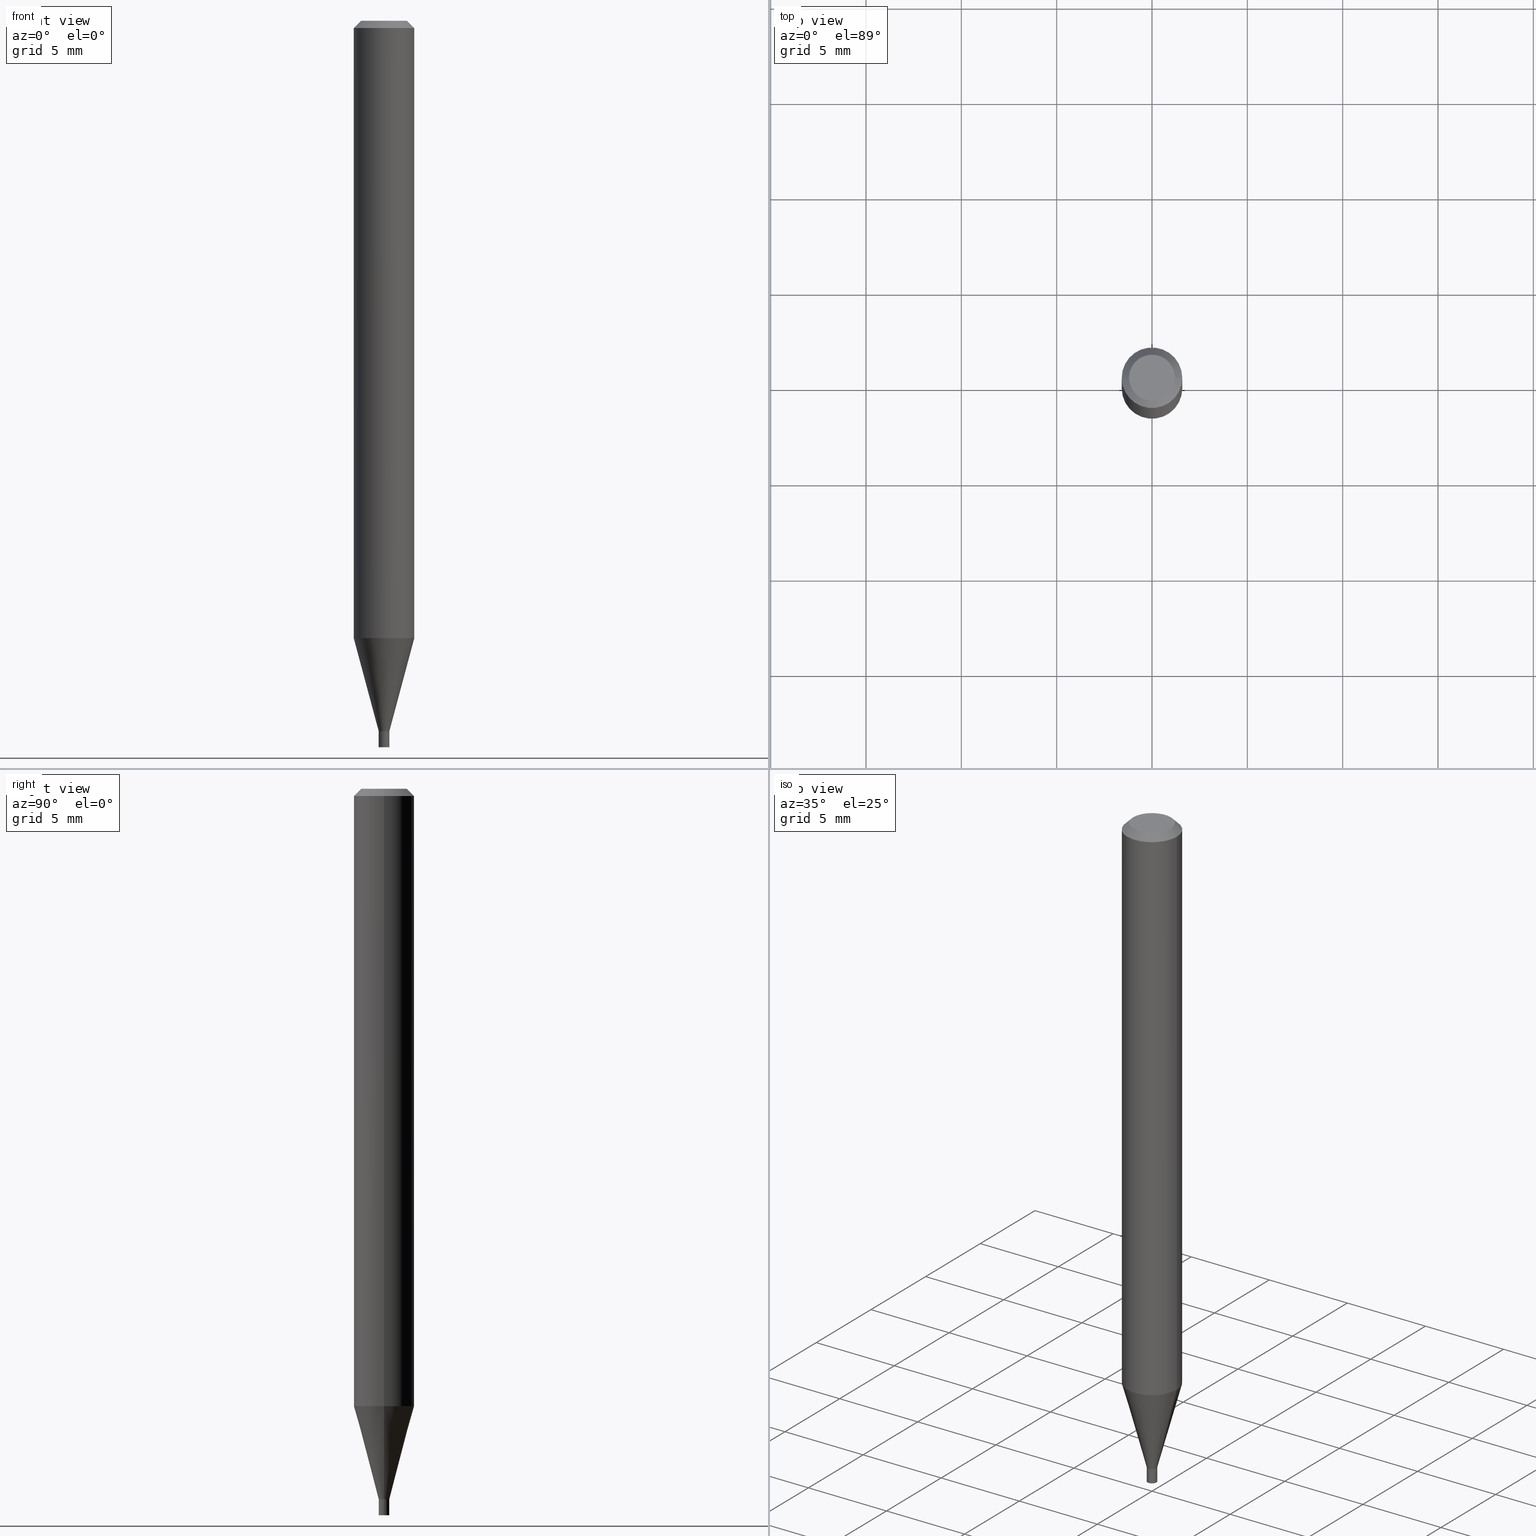
[diagram: canonical four-view strip — front | top / right | iso, engineering-drawing reading convention]
A machine part, canonical four-view strip (front | top / right | iso — engineering-drawing reading convention). The complete STEP part file that produces these views, byte-faithful:
ISO-10303-21;
HEADER;
FILE_DESCRIPTION (( 'STEP AP203' ),
    '1' );
FILE_NAME ('04057.STEP',
    '2024-03-14T16:55:55',
    ( '' ),
    ( '' ),
    'SwSTEP 2.0',
    'SolidWorks 2023',
    '' );
FILE_SCHEMA (( 'CONFIG_CONTROL_DESIGN' ));
ENDSEC;

DATA;
#1 = CC_DESIGN_PERSON_AND_ORGANIZATION_ASSIGNMENT ( #65, #47, ( #183 ) ) ;
#2 = VERTEX_POINT ( 'NONE', #393 ) ;
#3 = ORIENTED_EDGE ( 'NONE', *, *, #371, .T. ) ;
#4 = CIRCLE ( 'NONE', #318, 0.06250000000000000000 ) ;
#5 = CALENDAR_DATE ( 2024, 14, 3 ) ;
#6 = EDGE_CURVE ( 'NONE', #356, #174, #235, .T. ) ;
#7 = DIRECTION ( 'NONE',  ( 1.000000000000000000, -6.982962677686245411E-15, 0.000000000000000000 ) ) ;
#8 = DIRECTION ( 'NONE',  ( -2.445468806185136597E-29, 3.491481338843145583E-15, 1.000000000000000000 ) ) ;
#9 = FACE_OUTER_BOUND ( 'NONE', #215, .T. ) ;
#10 = CALENDAR_DATE ( 2024, 14, 3 ) ;
#11 = CARTESIAN_POINT ( 'NONE',  ( 3.668203209277705088E-31, -5.237222008264718399E-17, -0.01499999999999999944 ) ) ;
#12 = PERSON_AND_ORGANIZATION ( #396, #122 ) ;
#13 = VECTOR ( 'NONE', #162, 39.37007874015748143 ) ;
#14 =( GEOMETRIC_REPRESENTATION_CONTEXT ( 3 ) GLOBAL_UNCERTAINTY_ASSIGNED_CONTEXT ( ( #459 ) ) GLOBAL_UNIT_ASSIGNED_CONTEXT ( ( #389, #39, #179 ) ) REPRESENTATION_CONTEXT ( 'NONE', 'WORKASPACE' ) );
#15 = DIRECTION ( 'NONE',  ( 2.438088387897960049E-29, -3.491481338843145188E-15, -1.000000000000000000 ) ) ;
#16 = CC_DESIGN_DATE_AND_TIME_ASSIGNMENT ( #368, #153, ( #183 ) ) ;
#17 = CARTESIAN_POINT ( 'NONE',  ( 3.668203209277705088E-31, -5.237222008264718399E-17, -0.01499999999999999944 ) ) ;
#18 = CYLINDRICAL_SURFACE ( 'NONE', #86, 0.01099999999999999936 ) ;
#19 = VERTEX_POINT ( 'NONE', #72 ) ;
#20 = AXIS2_PLACEMENT_3D ( 'NONE', #30, #315, #424 ) ;
#21 = CARTESIAN_POINT ( 'NONE',  ( 0.04749999999999999362, -4.035134999187566790E-16, 6.443424916547846258E-16 ) ) ;
#22 = EDGE_CURVE ( 'NONE', #427, #430, #35, .T. ) ;
#23 = ORIENTED_EDGE ( 'NONE', *, *, #301, .T. ) ;
#24 = FACE_OUTER_BOUND ( 'NONE', #275, .T. ) ;
#25 = DIRECTION ( 'NONE',  ( 1.000000000000000000, -6.982962677686265922E-15, 4.876176775795936353E-29 ) ) ;
#26 = DIRECTION ( 'NONE',  ( 1.000000000000000000, -6.982962677686296687E-15, 0.000000000000000000 ) ) ;
#27 = CIRCLE ( 'NONE', #283, 0.01049999999999999892 ) ;
#28 = ADVANCED_FACE ( 'NONE', ( #142 ), #282, .T. ) ;
#29 = CYLINDRICAL_SURFACE ( 'NONE', #213, 0.01100000000000019539 ) ;
#30 = CARTESIAN_POINT ( 'NONE',  ( 3.668203209277704895E-29, -5.237222008264718177E-15, -1.500000000000000222 ) ) ;
#31 = CARTESIAN_POINT ( 'NONE',  ( 3.587502738673596813E-29, -5.122003124082896575E-15, -1.467000000000000526 ) ) ;
#32 = VERTEX_POINT ( 'NONE', #69 ) ;
#33 = DIRECTION ( 'NONE',  ( -2.445468806185136597E-29, 3.491481338843145583E-15, 1.000000000000000000 ) ) ;
#34 = EDGE_CURVE ( 'NONE', #174, #356, #416, .T. ) ;
#35 = CIRCLE ( 'NONE', #425, 0.01049999999999999892 ) ;
#36 = CIRCLE ( 'NONE', #387, 0.01099999999999999936 ) ;
#37 = CARTESIAN_POINT ( 'NONE',  ( 3.587502738673596813E-29, -5.122003124082896575E-15, -1.467000000000000526 ) ) ;
#38 = ORIENTED_EDGE ( 'NONE', *, *, #199, .F. ) ;
#39 =( NAMED_UNIT ( * ) PLANE_ANGLE_UNIT ( ) SI_UNIT ( $, .RADIAN. ) );
#40 = EDGE_CURVE ( 'NONE', #19, #466, #104, .T. ) ;
#41 = DIRECTION ( 'NONE',  ( 0.7071067811865642261, -2.468850131082431399E-15, 0.7071067811865309194 ) ) ;
#42 = CIRCLE ( 'NONE', #394, 0.06250000000000000000 ) ;
#43 = DIRECTION ( 'NONE',  ( 1.000000000000000000, -6.982962677686287221E-15, 0.000000000000000000 ) ) ;
#44 = LOCAL_TIME ( 12, 55, 55.00000000000000000, #438 ) ;
#45 = DIRECTION ( 'NONE',  ( 2.445468806185136597E-29, -3.491481338843145583E-15, -1.000000000000000000 ) ) ;
#46 = DIRECTION ( 'NONE',  ( 1.000000000000000000, -6.982962677686245411E-15, 0.000000000000000000 ) ) ;
#47 = PERSON_AND_ORGANIZATION_ROLE ( 'creator' ) ;
#48 = CARTESIAN_POINT ( 'NONE',  ( 3.587502738673595692E-29, -5.122003124082895786E-15, -1.467000000000000304 ) ) ;
#49 = EDGE_CURVE ( 'NONE', #73, #232, #236, .T. ) ;
#50 = APPROVAL_STATUS ( 'not_yet_approved' ) ;
#51 = VECTOR ( 'NONE', #450, 39.37007874015748143 ) ;
#52 = DIRECTION ( 'NONE',  ( -2.445468806185136597E-29, 3.491481338843145583E-15, 1.000000000000000000 ) ) ;
#53 = DIRECTION ( 'NONE',  ( -2.445468806185136597E-29, 3.491481338843145583E-15, 1.000000000000000000 ) ) ;
#54 = ORIENTED_EDGE ( 'NONE', *, *, #56, .T. ) ;
#55 = APPROVAL_ROLE ( '' ) ;
#56 = EDGE_CURVE ( 'NONE', #61, #386, #161, .T. ) ;
#57 = CYLINDRICAL_SURFACE ( 'NONE', #188, 0.06250000000000000000 ) ;
#58 = EDGE_LOOP ( 'NONE', ( #106, #212, #164, #323 ) ) ;
#59 = FACE_OUTER_BOUND ( 'NONE', #395, .T. ) ;
#60 = CARTESIAN_POINT ( 'NONE',  ( -0.01099999999999999936, -5.101452865240196680E-15, -1.500000000000000222 ) ) ;
#61 = VERTEX_POINT ( 'NONE', #437 ) ;
#62 = DIRECTION ( 'NONE',  ( -2.445468806185136877E-29, 3.491481338843145188E-15, 1.000000000000000000 ) ) ;
#63 = ORIENTED_EDGE ( 'NONE', *, *, #165, .T. ) ;
#64 = EDGE_CURVE ( 'NONE', #32, #141, #335, .T. ) ;
#65 = PERSON_AND_ORGANIZATION ( #396, #122 ) ;
#66 = AXIS2_PLACEMENT_3D ( 'NONE', #291, #398, #330 ) ;
#67 = ORIENTED_EDGE ( 'NONE', *, *, #129, .F. ) ;
#68 = DIRECTION ( 'NONE',  ( 1.000000000000000000, -6.982962677686262766E-15, 0.000000000000000000 ) ) ;
#69 = CARTESIAN_POINT ( 'NONE',  ( -0.01100000000000019539, -4.525346235622348096E-15, -1.467000000000000304 ) ) ;
#70 = ADVANCED_FACE ( 'NONE', ( #397 ), #326, .T. ) ;
#71 = CARTESIAN_POINT ( 'NONE',  ( 3.668203209277704895E-29, -5.237222008264718177E-15, -1.500000000000000222 ) ) ;
#72 = CARTESIAN_POINT ( 'NONE',  ( 0.01100000000000019539, -5.198815713537445887E-15, -1.467000000000000304 ) ) ;
#73 = VERTEX_POINT ( 'NONE', #76 ) ;
#74 = APPROVAL_STATUS ( 'not_yet_approved' ) ;
#75 = PLANE ( 'NONE',  #227 ) ;
#76 = CARTESIAN_POINT ( 'NONE',  ( -0.04749999999999999362, 3.578768372314221846E-16, 6.443424916547796954E-16 ) ) ;
#77 = AXIS2_PLACEMENT_3D ( 'NONE', #11, #434, #402 ) ;
#78 = FACE_OUTER_BOUND ( 'NONE', #449, .T. ) ;
#79 = LOCAL_TIME ( 12, 55, 55.00000000000000000, #220 ) ;
#80 = DIRECTION ( 'NONE',  ( -2.445468806185136877E-29, 3.491481338843145188E-15, 1.000000000000000000 ) ) ;
#81 = APPROVAL_DATE_TIME ( #376, #352 ) ;
#82 = EDGE_CURVE ( 'NONE', #430, #141, #404, .T. ) ;
#83 = CARTESIAN_POINT ( 'NONE',  ( -0.01049999999999999892, -5.047396136828085594E-15, -1.467000000000000526 ) ) ;
#84 = PERSON_AND_ORGANIZATION_ROLE ( 'design_supplier' ) ;
#85 = CARTESIAN_POINT ( 'NONE',  ( 0.06250000000000000000, -4.364351673553916694E-16, 3.047610484872459871E-30 ) ) ;
#86 = AXIS2_PLACEMENT_3D ( 'NONE', #271, #198, #408 ) ;
#87 = PRODUCT_DEFINITION_FORMATION_WITH_SPECIFIED_SOURCE ( 'ANY', '', #339, .NOT_KNOWN. ) ;
#88 = DIRECTION ( 'NONE',  ( -2.445468806185136597E-29, 3.491481338843145583E-15, 1.000000000000000000 ) ) ;
#89 = EDGE_CURVE ( 'NONE', #19, #32, #103, .T. ) ;
#90 = APPLICATION_CONTEXT ( 'configuration controlled 3d designs of mechanical parts and assemblies' ) ;
#91 = CARTESIAN_POINT ( 'NONE',  ( -0.06250000000000000000, -4.006849048095413862E-15, -1.274799383410204268 ) ) ;
#92 = CARTESIAN_POINT ( 'NONE',  ( 0.01100000000000019539, -5.197069972868025172E-15, -1.466500000000000359 ) ) ;
#93 = AXIS2_PLACEMENT_3D ( 'NONE', #363, #45, #184 ) ;
#94 = DIRECTION ( 'NONE',  ( -2.445468806185136877E-29, 3.491481338843145188E-15, 1.000000000000000000 ) ) ;
#95 = AXIS2_PLACEMENT_3D ( 'NONE', #133, #8, #68 ) ;
#96 = EDGE_LOOP ( 'NONE', ( #382, #384 ) ) ;
#97 = LINE ( 'NONE', #383, #206 ) ;
#98 = CC_DESIGN_PERSON_AND_ORGANIZATION_ASSIGNMENT ( #436, #461, ( #339 ) ) ;
#99 = ORIENTED_EDGE ( 'NONE', *, *, #34, .F. ) ;
#100 = DATE_AND_TIME ( #5, #79 ) ;
#101 = ORIENTED_EDGE ( 'NONE', *, *, #336, .F. ) ;
#102 = DIRECTION ( 'NONE',  ( -2.445468806185136597E-29, 3.491481338843145583E-15, 1.000000000000000000 ) ) ;
#103 = CIRCLE ( 'NONE', #465, 0.01100000000000019539 ) ;
#104 = LINE ( 'NONE', #209, #303 ) ;
#105 = ORIENTED_EDGE ( 'NONE', *, *, #150, .T. ) ;
#106 = ORIENTED_EDGE ( 'NONE', *, *, #89, .T. ) ;
#107 = ORIENTED_EDGE ( 'NONE', *, *, #301, .F. ) ;
#108 = AXIS2_PLACEMENT_3D ( 'NONE', #151, #52, #222 ) ;
#109 = DIRECTION ( 'NONE',  ( 1.000000000000000000, -6.982962677686245411E-15, 0.000000000000000000 ) ) ;
#110 = EDGE_CURVE ( 'NONE', #2, #128, #270, .T. ) ;
#111 = FACE_OUTER_BOUND ( 'NONE', #284, .T. ) ;
#112 = DIRECTION ( 'NONE',  ( -2.445468806185136877E-29, 3.491481338843145188E-15, 1.000000000000000000 ) ) ;
#113 = DIRECTION ( 'NONE',  ( 1.000000000000000000, 0.000000000000000000, 0.000000000000000000 ) ) ;
#114 = DIRECTION ( 'NONE',  ( 2.438088387897960049E-29, -3.491481338843145188E-15, -1.000000000000000000 ) ) ;
#115 = VECTOR ( 'NONE', #268, 39.37007874015748143 ) ;
#116 = SHAPE_DEFINITION_REPRESENTATION ( #229, #420 ) ;
#117 = ADVANCED_FACE ( 'NONE', ( #367 ), #75, .F. ) ;
#118 = DIRECTION ( 'NONE',  ( -2.438088387897960049E-29, 3.491481338843145188E-15, 1.000000000000000000 ) ) ;
#119 = COORDINATED_UNIVERSAL_TIME_OFFSET ( 5, 0, .BEHIND. ) ;
#120 = DIRECTION ( 'NONE',  ( 1.000000000000000000, -6.982962677686296687E-15, 0.000000000000000000 ) ) ;
#121 = DIRECTION ( 'NONE',  ( -2.445468806185136597E-29, 3.491481338843145583E-15, 1.000000000000000000 ) ) ;
#122 = ORGANIZATION ( 'UNSPECIFIED', 'UNSPECIFIED', '' ) ;
#123 = LINE ( 'NONE', #340, #13 ) ;
#124 = ORIENTED_EDGE ( 'NONE', *, *, #22, .T. ) ;
#125 = DIRECTION ( 'NONE',  ( 1.000000000000000000, -6.982962677686296687E-15, 0.000000000000000000 ) ) ;
#126 = ORIENTED_EDGE ( 'NONE', *, *, #82, .T. ) ;
#127 = CARTESIAN_POINT ( 'NONE',  ( 3.587502738673595692E-29, -5.122003124082895786E-15, -1.467000000000000304 ) ) ;
#128 = VERTEX_POINT ( 'NONE', #180 ) ;
#129 = EDGE_CURVE ( 'NONE', #386, #61, #36, .T. ) ;
#130 = VECTOR ( 'NONE', #80, 39.37007874015748143 ) ;
#131 = LINE ( 'NONE', #380, #226 ) ;
#132 = CARTESIAN_POINT ( 'NONE',  ( 0.000000000000000000, 0.000000000000000000, 0.000000000000000000 ) ) ;
#133 = CARTESIAN_POINT ( 'NONE',  ( 3.117482126273700423E-29, -4.450938257945477267E-15, -1.274799383410204268 ) ) ;
#134 = CARTESIAN_POINT ( 'NONE',  ( 0.000000000000000000, 0.000000000000000000, 0.000000000000000000 ) ) ;
#135 = ADVANCED_FACE ( 'NONE', ( #333 ), #287, .F. ) ;
#136 = APPLICATION_CONTEXT ( 'configuration controlled 3d designs of mechanical parts and assemblies' ) ;
#137 = DIRECTION ( 'NONE',  ( 0.000000000000000000, 0.000000000000000000, 1.000000000000000000 ) ) ;
#138 = CIRCLE ( 'NONE', #167, 0.01100000000000019539 ) ;
#139 = EDGE_LOOP ( 'NONE', ( #432, #269, #105, #169 ) ) ;
#140 = LOCAL_TIME ( 12, 55, 55.00000000000000000, #265 ) ;
#141 = VERTEX_POINT ( 'NONE', #155 ) ;
#142 = FACE_OUTER_BOUND ( 'NONE', #139, .T. ) ;
#143 = ADVANCED_FACE ( 'NONE', ( #9 ), #297, .F. ) ;
#144 = ORIENTED_EDGE ( 'NONE', *, *, #279, .F. ) ;
#145 = CIRCLE ( 'NONE', #407, 0.01100000000000019539 ) ;
#146 = APPROVAL_PERSON_ORGANIZATION ( #443, #352, #55 ) ;
#147 = DIRECTION ( 'NONE',  ( 1.000000000000000000, -6.982962677686266711E-15, 4.876176775795935232E-29 ) ) ;
#148 = DIRECTION ( 'NONE',  ( 1.000000000000000000, -6.982962677686267499E-15, 4.852736867747366768E-29 ) ) ;
#149 = DIRECTION ( 'NONE',  ( -1.000000000000000000, 6.982962677686265922E-15, -4.876176775795935793E-29 ) ) ;
#150 = EDGE_CURVE ( 'NONE', #466, #128, #405, .T. ) ;
#151 = CARTESIAN_POINT ( 'NONE',  ( 3.668203209277705088E-31, -5.237222008264718399E-17, -0.01499999999999999944 ) ) ;
#152 = AXIS2_PLACEMENT_3D ( 'NONE', #134, #208, #351 ) ;
#153 = DATE_TIME_ROLE ( 'creation_date' ) ;
#154 = LOCAL_TIME ( 12, 55, 55.00000000000000000, #119 ) ;
#155 = CARTESIAN_POINT ( 'NONE',  ( -0.01100000000000019539, -5.042097682479861615E-15, -1.466500000000000359 ) ) ;
#156 = CALENDAR_DATE ( 2024, 14, 3 ) ;
#157 = DIRECTION ( 'NONE',  ( -2.445468806185136597E-29, 3.491481338843145583E-15, 1.000000000000000000 ) ) ;
#158 = PERSON_AND_ORGANIZATION ( #396, #122 ) ;
#159 = DIRECTION ( 'NONE',  ( 1.000000000000000000, -6.982962677686287221E-15, 0.000000000000000000 ) ) ;
#160 = AXIS2_PLACEMENT_3D ( 'NONE', #71, #354, #109 ) ;
#161 = CIRCLE ( 'NONE', #196, 0.01099999999999999936 ) ;
#162 = DIRECTION ( 'NONE',  ( -0.2588190451025214611, 5.211531920934550253E-15, 0.9659258262890679791 ) ) ;
#163 = CARTESIAN_POINT ( 'NONE',  ( 3.586280004270504012E-29, -5.120257383413474282E-15, -1.466500000000000359 ) ) ;
#164 = ORIENTED_EDGE ( 'NONE', *, *, #242, .F. ) ;
#165 = EDGE_CURVE ( 'NONE', #174, #61, #329, .T. ) ;
#166 = CARTESIAN_POINT ( 'NONE',  ( 3.586280004270504012E-29, -5.120257383413474282E-15, -1.466500000000000359 ) ) ;
#167 = AXIS2_PLACEMENT_3D ( 'NONE', #163, #337, #125 ) ;
#168 = CARTESIAN_POINT ( 'NONE',  ( 3.587502738673596813E-29, -5.122003124082896575E-15, -1.467000000000000526 ) ) ;
#169 = ORIENTED_EDGE ( 'NONE', *, *, #110, .F. ) ;
#170 = ORIENTED_EDGE ( 'NONE', *, *, #34, .T. ) ;
#171 = FACE_OUTER_BOUND ( 'NONE', #310, .T. ) ;
#172 = ORIENTED_EDGE ( 'NONE', *, *, #331, .T. ) ;
#173 = CIRCLE ( 'NONE', #95, 0.06250000000000000000 ) ;
#174 = VERTEX_POINT ( 'NONE', #191 ) ;
#175 = AXIS2_PLACEMENT_3D ( 'NONE', #364, #102, #43 ) ;
#176 = DIRECTION ( 'NONE',  ( 1.000000000000000000, -6.982962677686287221E-15, 0.000000000000000000 ) ) ;
#177 = EDGE_CURVE ( 'NONE', #128, #2, #42, .T. ) ;
#178 = ORIENTED_EDGE ( 'NONE', *, *, #214, .F. ) ;
#179 =( NAMED_UNIT ( * ) SI_UNIT ( $, .STERADIAN. ) SOLID_ANGLE_UNIT ( ) );
#180 = CARTESIAN_POINT ( 'NONE',  ( 0.06250000000000000000, -4.888073874380388472E-16, -0.01499999999999999944 ) ) ;
#181 = VECTOR ( 'NONE', #41, 39.37007874015748143 ) ;
#182 = CARTESIAN_POINT ( 'NONE',  ( 0.000000000000000000, 0.000000000000000000, 0.000000000000000000 ) ) ;
#183 = PRODUCT_DEFINITION ( 'UNKNOWN', '', #87, #205 ) ;
#184 = DIRECTION ( 'NONE',  ( -1.000000000000000000, 6.982962677686266711E-15, 0.000000000000000000 ) ) ;
#185 = DIRECTION ( 'NONE',  ( -2.445468806185136597E-29, 3.491481338843145583E-15, 1.000000000000000000 ) ) ;
#186 = SECURITY_CLASSIFICATION_LEVEL ( 'unclassified' ) ;
#187 = DIRECTION ( 'NONE',  ( 1.000000000000000000, -6.982962677686265922E-15, 4.876176775795935793E-29 ) ) ;
#188 = AXIS2_PLACEMENT_3D ( 'NONE', #201, #377, #300 ) ;
#189 = CALENDAR_DATE ( 2024, 14, 3 ) ;
#190 = AXIS2_PLACEMENT_3D ( 'NONE', #218, #421, #147 ) ;
#191 = CARTESIAN_POINT ( 'NONE',  ( 0.01099999999999999936, -5.314034597719267489E-15, -1.500000000000000222 ) ) ;
#192 = FACE_OUTER_BOUND ( 'NONE', #462, .T. ) ;
#193 = APPROVAL_STATUS ( 'not_yet_approved' ) ;
#194 = DIRECTION ( 'NONE',  ( 1.000000000000000000, -6.982962677686296687E-15, 0.000000000000000000 ) ) ;
#195 = ORIENTED_EDGE ( 'NONE', *, *, #259, .F. ) ;
#196 = AXIS2_PLACEMENT_3D ( 'NONE', #365, #442, #46 ) ;
#197 = CONICAL_SURFACE ( 'NONE', #175, 0.01049999999999999892, 0.7853981633974718157 ) ;
#198 = DIRECTION ( 'NONE',  ( -2.445468806185136597E-29, 3.491481338843145583E-15, 1.000000000000000000 ) ) ;
#199 = EDGE_CURVE ( 'NONE', #427, #316, #446, .T. ) ;
#200 = ORIENTED_EDGE ( 'NONE', *, *, #177, .T. ) ;
#201 = CARTESIAN_POINT ( 'NONE',  ( 0.000000000000000000, 0.000000000000000000, 0.000000000000000000 ) ) ;
#202 = ORIENTED_EDGE ( 'NONE', *, *, #409, .F. ) ;
#203 = CARTESIAN_POINT ( 'NONE',  ( 3.587502738673595692E-29, -5.122003124082895786E-15, -1.467000000000000304 ) ) ;
#204 = CLOSED_SHELL ( 'NONE', ( #325, #117, #233, #143 ) ) ;
#205 = DESIGN_CONTEXT ( 'detailed design', #90, 'design' ) ;
#206 = VECTOR ( 'NONE', #62, 39.37007874015748143 ) ;
#207 = DIRECTION ( 'NONE',  ( 1.000000000000000000, -6.982962677686265922E-15, 4.876176775795935793E-29 ) ) ;
#208 = DIRECTION ( 'NONE',  ( -2.445468806185136597E-29, 3.491481338843145583E-15, 1.000000000000000000 ) ) ;
#209 = CARTESIAN_POINT ( 'NONE',  ( 0.01100000000000019539, -5.198815713537445887E-15, -1.467000000000000304 ) ) ;
#210 = EDGE_LOOP ( 'NONE', ( #278, #272, #456, #23 ) ) ;
#211 = AXIS2_PLACEMENT_3D ( 'NONE', #260, #15, #149 ) ;
#212 = ORIENTED_EDGE ( 'NONE', *, *, #259, .T. ) ;
#213 = AXIS2_PLACEMENT_3D ( 'NONE', #182, #286, #216 ) ;
#214 = EDGE_CURVE ( 'NONE', #232, #73, #256, .T. ) ;
#215 = EDGE_LOOP ( 'NONE', ( #54, #390 ) ) ;
#216 = DIRECTION ( 'NONE',  ( 1.000000000000000000, -6.982962677686266711E-15, 4.876176775795935232E-29 ) ) ;
#217 = CARTESIAN_POINT ( 'NONE',  ( -1.575719463841376315E-44, 2.249709785436367094E-30, 6.443424916547820620E-16 ) ) ;
#218 = CARTESIAN_POINT ( 'NONE',  ( 0.000000000000000000, 0.000000000000000000, 0.000000000000000000 ) ) ;
#219 = FACE_OUTER_BOUND ( 'NONE', #320, .T. ) ;
#220 = COORDINATED_UNIVERSAL_TIME_OFFSET ( 5, 0, .BEHIND. ) ;
#221 = DIRECTION ( 'NONE',  ( -0.7071067811865642261, 7.493145998870414114E-15, 0.7071067811865309194 ) ) ;
#222 = DIRECTION ( 'NONE',  ( 1.000000000000000000, -6.982962677686266711E-15, 0.000000000000000000 ) ) ;
#223 = PERSON_AND_ORGANIZATION_ROLE ( 'classification_officer' ) ;
#224 = DIRECTION ( 'NONE',  ( -2.445468806185136877E-29, 3.491481338843145188E-15, 1.000000000000000000 ) ) ;
#225 = ADVANCED_FACE ( 'NONE', ( #219 ), #362, .T. ) ;
#226 = VECTOR ( 'NONE', #263, 39.37007874015748143 ) ;
#227 = AXIS2_PLACEMENT_3D ( 'NONE', #327, #118, #187 ) ;
#228 = DIRECTION ( 'NONE',  ( -2.445468806185136597E-29, 3.491481338843145583E-15, 1.000000000000000000 ) ) ;
#229 = PRODUCT_DEFINITION_SHAPE ( 'NONE', 'NONE',  #183 ) ;
#230 = COORDINATED_UNIVERSAL_TIME_OFFSET ( 5, 0, .BEHIND. ) ;
#231 = CYLINDRICAL_SURFACE ( 'NONE', #426, 0.01099999999999999936 ) ;
#232 = VERTEX_POINT ( 'NONE', #21 ) ;
#233 = ADVANCED_FACE ( 'NONE', ( #344 ), #231, .T. ) ;
#234 = CARTESIAN_POINT ( 'NONE',  ( 0.000000000000000000, 0.000000000000000000, 0.000000000000000000 ) ) ;
#235 = CIRCLE ( 'NONE', #160, 0.01099999999999999936 ) ;
#236 = CIRCLE ( 'NONE', #66, 0.04749999999999999362 ) ;
#237 = LINE ( 'NONE', #410, #115 ) ;
#238 = CARTESIAN_POINT ( 'NONE',  ( 3.587502738673595692E-29, -5.122003124082895786E-15, -1.467000000000000304 ) ) ;
#239 = ORIENTED_EDGE ( 'NONE', *, *, #150, .F. ) ;
#240 = APPROVAL_DATE_TIME ( #100, #247 ) ;
#241 = ORIENTED_EDGE ( 'NONE', *, *, #110, .T. ) ;
#242 = EDGE_CURVE ( 'NONE', #466, #338, #4, .T. ) ;
#243 = AXIS2_PLACEMENT_3D ( 'NONE', #31, #359, #207 ) ;
#244 =( LENGTH_UNIT ( ) NAMED_UNIT ( * ) SI_UNIT ( $, .METRE. ) );
#245 = ORIENTED_EDGE ( 'NONE', *, *, #22, .F. ) ;
#246 = EDGE_LOOP ( 'NONE', ( #178, #267, #200, #101 ) ) ;
#247 = APPROVAL ( #74, 'UNSPECIFIED' ) ;
#248 = ORIENTED_EDGE ( 'NONE', *, *, #347, .T. ) ;
#249 = AXIS2_PLACEMENT_3D ( 'NONE', #203, #418, #194 ) ;
#250 = ORIENTED_EDGE ( 'NONE', *, *, #6, .F. ) ;
#251 = CARTESIAN_POINT ( 'NONE',  ( 0.01049999999999999892, -5.195324232198602880E-15, -1.467000000000000526 ) ) ;
#252 = ADVANCED_FACE ( 'NONE', ( #24 ), #57, .T. ) ;
#253 = DIRECTION ( 'NONE',  ( -2.445468806185136597E-29, 3.491481338843145583E-15, 1.000000000000000000 ) ) ;
#254 = APPLICATION_PROTOCOL_DEFINITION ( 'international standard', 'config_control_design', 1994, #90 ) ;
#255 = CARTESIAN_POINT ( 'NONE',  ( 7.681258945458479888E-17, 0.01099999999999487672, -1.467000000000000304 ) ) ;
#256 = CIRCLE ( 'NONE', #342, 0.04749999999999999362 ) ;
#257 = DATE_AND_TIME ( #156, #44 ) ;
#258 = DIRECTION ( 'NONE',  ( -2.445468806185136597E-29, 3.491481338843145583E-15, 1.000000000000000000 ) ) ;
#259 = EDGE_CURVE ( 'NONE', #32, #338, #123, .T. ) ;
#260 = CARTESIAN_POINT ( 'NONE',  ( 3.316907271900976096E-16, 0.04749999999999999362, 1.563258822323416346E-16 ) ) ;
#261 = DIRECTION ( 'NONE',  ( -2.445468806185136597E-29, 3.491481338843145583E-15, 1.000000000000000000 ) ) ;
#262 = APPROVAL_PERSON_ORGANIZATION ( #391, #247, #324 ) ;
#263 = DIRECTION ( 'NONE',  ( -2.445468806185136877E-29, 3.491481338843145188E-15, 1.000000000000000000 ) ) ;
#264 = ADVANCED_FACE ( 'NONE', ( #59 ), #457, .T. ) ;
#265 = COORDINATED_UNIVERSAL_TIME_OFFSET ( 5, 0, .BEHIND. ) ;
#266 = CARTESIAN_POINT ( 'NONE',  ( 3.117482126273700423E-29, -4.450938257945477267E-15, -1.274799383410204268 ) ) ;
#267 = ORIENTED_EDGE ( 'NONE', *, *, #279, .T. ) ;
#268 = DIRECTION ( 'NONE',  ( -0.7071067811865323627, 2.468850131082098105E-15, -0.7071067811865626718 ) ) ;
#269 = ORIENTED_EDGE ( 'NONE', *, *, #409, .T. ) ;
#270 = CIRCLE ( 'NONE', #108, 0.06250000000000000000 ) ;
#271 = CARTESIAN_POINT ( 'NONE',  ( 0.000000000000000000, 0.000000000000000000, 0.000000000000000000 ) ) ;
#272 = ORIENTED_EDGE ( 'NONE', *, *, #89, .F. ) ;
#273 = MECHANICAL_CONTEXT ( 'NONE', #136, 'mechanical' ) ;
#274 = CC_DESIGN_PERSON_AND_ORGANIZATION_ASSIGNMENT ( #12, #223, ( #355 ) ) ;
#275 = EDGE_LOOP ( 'NONE', ( #460, #321, #306, #239 ) ) ;
#276 = ORIENTED_EDGE ( 'NONE', *, *, #165, .F. ) ;
#277 = APPLICATION_PROTOCOL_DEFINITION ( 'international standard', 'config_control_design', 1994, #136 ) ;
#278 = ORIENTED_EDGE ( 'NONE', *, *, #64, .F. ) ;
#279 = EDGE_CURVE ( 'NONE', #232, #128, #453, .T. ) ;
#280 = EDGE_LOOP ( 'NONE', ( #99, #250 ) ) ;
#281 = PRODUCT_RELATED_PRODUCT_CATEGORY ( 'detail', '', ( #339 ) ) ;
#282 = CYLINDRICAL_SURFACE ( 'NONE', #152, 0.06250000000000000000 ) ;
#283 = AXIS2_PLACEMENT_3D ( 'NONE', #168, #412, #159 ) ;
#284 = EDGE_LOOP ( 'NONE', ( #245, #349 ) ) ;
#285 = CC_DESIGN_SECURITY_CLASSIFICATION ( #355, ( #87 ) ) ;
#286 = DIRECTION ( 'NONE',  ( -2.445468806185136597E-29, 3.491481338843145583E-15, 1.000000000000000000 ) ) ;
#287 = PLANE ( 'NONE',  #211 ) ;
#288 = LENGTH_MEASURE_WITH_UNIT ( LENGTH_MEASURE( 0.02539999999999999897 ), #244 );
#289 = MANIFOLD_SOLID_BREP ( 'Body-Move/Copy2[1]', #204 ) ;
#290 = CARTESIAN_POINT ( 'NONE',  ( 3.587502738673595692E-29, -5.122003124082895786E-15, -1.467000000000000304 ) ) ;
#291 = CARTESIAN_POINT ( 'NONE',  ( -1.575719463841376315E-44, 2.249709785436367094E-30, 6.443424916547820620E-16 ) ) ;
#292 = VECTOR ( 'NONE', #112, 39.37007874015748143 ) ;
#293 = APPROVAL_PERSON_ORGANIZATION ( #158, #381, #295 ) ;
#294 = MANIFOLD_SOLID_BREP ( 'Body-Move/Copy2[2]', #439 ) ;
#295 = APPROVAL_ROLE ( '' ) ;
#296 = EDGE_CURVE ( 'NONE', #338, #2, #131, .T. ) ;
#297 = PLANE ( 'NONE',  #370 ) ;
#298 = CARTESIAN_POINT ( 'NONE',  ( 0.01099999999999999936, -7.681258945454891804E-17, 5.363794453375529652E-31 ) ) ;
#299 = DATE_AND_TIME ( #189, #304 ) ;
#300 = DIRECTION ( 'NONE',  ( 1.000000000000000000, -6.982962677686266711E-15, 4.876176775795935793E-29 ) ) ;
#301 = EDGE_CURVE ( 'NONE', #316, #141, #138, .T. ) ;
#302 = ORIENTED_EDGE ( 'NONE', *, *, #40, .T. ) ;
#303 = VECTOR ( 'NONE', #353, 39.37007874015748143 ) ;
#304 = LOCAL_TIME ( 12, 55, 55.00000000000000000, #230 ) ;
#305 = CARTESIAN_POINT ( 'NONE',  ( 0.06250000000000000000, -4.811533449433679005E-16, -0.01499999999999999944 ) ) ;
#306 = ORIENTED_EDGE ( 'NONE', *, *, #177, .F. ) ;
#307 = DIRECTION ( 'NONE',  ( -2.445468806185136597E-29, 3.491481338843145583E-15, 1.000000000000000000 ) ) ;
#308 = ORIENTED_EDGE ( 'NONE', *, *, #82, .F. ) ;
#309 = FACE_OUTER_BOUND ( 'NONE', #58, .T. ) ;
#310 = EDGE_LOOP ( 'NONE', ( #308, #357, #419, #464 ) ) ;
#311 = VECTOR ( 'NONE', #221, 39.37007874015748143 ) ;
#312 = ADVANCED_FACE ( 'NONE', ( #309 ), #447, .T. ) ;
#313 = CARTESIAN_POINT ( 'NONE',  ( 3.587502738673596813E-29, -5.122003124082896575E-15, -1.467000000000000526 ) ) ;
#314 = EDGE_LOOP ( 'NONE', ( #345, #341, #63, #67 ) ) ;
#315 = DIRECTION ( 'NONE',  ( -2.445468806185136597E-29, 3.491481338843145583E-15, 1.000000000000000000 ) ) ;
#316 = VERTEX_POINT ( 'NONE', #92 ) ;
#317 = EDGE_CURVE ( 'NONE', #430, #427, #27, .T. ) ;
#318 = AXIS2_PLACEMENT_3D ( 'NONE', #266, #121, #375 ) ;
#319 = CC_DESIGN_APPROVAL ( #352, ( #355 ) ) ;
#320 = EDGE_LOOP ( 'NONE', ( #144, #428, #415, #241 ) ) ;
#321 = ORIENTED_EDGE ( 'NONE', *, *, #296, .T. ) ;
#322 = DIMENSIONAL_EXPONENTS ( 1.000000000000000000, 0.000000000000000000, 0.000000000000000000, 0.000000000000000000, 0.000000000000000000, 0.000000000000000000, 0.000000000000000000 ) ;
#323 = ORIENTED_EDGE ( 'NONE', *, *, #40, .F. ) ;
#324 = APPROVAL_ROLE ( '' ) ;
#325 = ADVANCED_FACE ( 'NONE', ( #192 ), #18, .T. ) ;
#326 = CONICAL_SURFACE ( 'NONE', #77, 0.06250000000000000000, 0.7853981633974268517 ) ;
#327 = CARTESIAN_POINT ( 'NONE',  ( 3.576687321579069994E-29, -5.368277968210015545E-15, -1.500000000000000222 ) ) ;
#328 = DIRECTION ( 'NONE',  ( 1.000000000000000000, -6.982962677686287221E-15, 0.000000000000000000 ) ) ;
#329 = LINE ( 'NONE', #298, #334 ) ;
#330 = DIRECTION ( 'NONE',  ( 1.000000000000000000, -6.982962677686267499E-15, 4.852736867747366768E-29 ) ) ;
#331 = EDGE_CURVE ( 'NONE', #32, #19, #401, .T. ) ;
#332 = PERSON_AND_ORGANIZATION ( #396, #122 ) ;
#333 = FACE_OUTER_BOUND ( 'NONE', #96, .T. ) ;
#334 = VECTOR ( 'NONE', #224, 39.37007874015748143 ) ;
#335 = LINE ( 'NONE', #444, #130 ) ;
#336 = EDGE_CURVE ( 'NONE', #73, #2, #237, .T. ) ;
#337 = DIRECTION ( 'NONE',  ( -2.445468806185136597E-29, 3.491481338843145583E-15, 1.000000000000000000 ) ) ;
#338 = VERTEX_POINT ( 'NONE', #91 ) ;
#339 = PRODUCT ( '04057', '04057', '', ( #273 ) ) ;
#340 = CARTESIAN_POINT ( 'NONE',  ( -0.01100000000000019539, -5.043843423149283118E-15, -1.467000000000000304 ) ) ;
#341 = ORIENTED_EDGE ( 'NONE', *, *, #6, .T. ) ;
#342 = AXIS2_PLACEMENT_3D ( 'NONE', #217, #253, #148 ) ;
#343 = CC_DESIGN_APPROVAL ( #381, ( #87 ) ) ;
#344 = FACE_OUTER_BOUND ( 'NONE', #314, .T. ) ;
#345 = ORIENTED_EDGE ( 'NONE', *, *, #347, .F. ) ;
#346 = LINE ( 'NONE', #414, #379 ) ;
#347 = EDGE_CURVE ( 'NONE', #356, #386, #346, .T. ) ;
#348 = FACE_OUTER_BOUND ( 'NONE', #378, .T. ) ;
#349 = ORIENTED_EDGE ( 'NONE', *, *, #317, .F. ) ;
#350 = AXIS2_PLACEMENT_3D ( 'NONE', #127, #88, #448 ) ;
#351 = DIRECTION ( 'NONE',  ( 1.000000000000000000, -6.982962677686266711E-15, 4.876176775795935793E-29 ) ) ;
#352 = APPROVAL ( #193, 'UNSPECIFIED' ) ;
#353 = DIRECTION ( 'NONE',  ( 0.2588190451025214611, 1.565188264969620982E-15, 0.9659258262890679791 ) ) ;
#354 = DIRECTION ( 'NONE',  ( -2.445468806185136597E-29, 3.491481338843145583E-15, 1.000000000000000000 ) ) ;
#355 = SECURITY_CLASSIFICATION ( '', '', #186 ) ;
#356 = VERTEX_POINT ( 'NONE', #60 ) ;
#357 = ORIENTED_EDGE ( 'NONE', *, *, #317, .T. ) ;
#358 = CC_DESIGN_PERSON_AND_ORGANIZATION_ASSIGNMENT ( #332, #84, ( #87 ) ) ;
#359 = DIRECTION ( 'NONE',  ( -2.438088387897960049E-29, 3.491481338843145188E-15, 1.000000000000000000 ) ) ;
#360 = DIRECTION ( 'NONE',  ( -1.000000000000000000, 6.982962677686265922E-15, -4.876176775795935793E-29 ) ) ;
#361 = CARTESIAN_POINT ( 'NONE',  ( -0.01049999999999999892, -5.044746909653973604E-15, -1.467000000000000526 ) ) ;
#362 = CONICAL_SURFACE ( 'NONE', #93, 0.06250000000000000000, 0.7853981633974268517 ) ;
#363 = CARTESIAN_POINT ( 'NONE',  ( 3.668203209277705088E-31, -5.237222008264718399E-17, -0.01499999999999999944 ) ) ;
#364 = CARTESIAN_POINT ( 'NONE',  ( 3.587502738673596813E-29, -5.122003124082896575E-15, -1.467000000000000526 ) ) ;
#365 = CARTESIAN_POINT ( 'NONE',  ( 3.587502738673595692E-29, -5.122003124082895786E-15, -1.467000000000000304 ) ) ;
#366 = APPROVAL_DATE_TIME ( #257, #381 ) ;
#367 = FACE_OUTER_BOUND ( 'NONE', #280, .T. ) ;
#368 = DATE_AND_TIME ( #374, #140 ) ;
#369 = DIRECTION ( 'NONE',  ( 1.000000000000000000, -6.982962677686266711E-15, 0.000000000000000000 ) ) ;
#370 = AXIS2_PLACEMENT_3D ( 'NONE', #255, #114, #360 ) ;
#371 = EDGE_CURVE ( 'NONE', #141, #316, #145, .T. ) ;
#372 = DATE_TIME_ROLE ( 'classification_date' ) ;
#373 = DIRECTION ( 'NONE',  ( 1.000000000000000000, -6.982962677686296687E-15, 0.000000000000000000 ) ) ;
#374 = CALENDAR_DATE ( 2024, 14, 3 ) ;
#375 = DIRECTION ( 'NONE',  ( 1.000000000000000000, -6.982962677686262766E-15, 0.000000000000000000 ) ) ;
#376 = DATE_AND_TIME ( #10, #154 ) ;
#377 = DIRECTION ( 'NONE',  ( -2.445468806185136597E-29, 3.491481338843145583E-15, 1.000000000000000000 ) ) ;
#378 = EDGE_LOOP ( 'NONE', ( #124, #126, #107, #38 ) ) ;
#379 = VECTOR ( 'NONE', #94, 39.37007874015748143 ) ;
#380 = CARTESIAN_POINT ( 'NONE',  ( -0.06250000000000000000, 4.440892098500626162E-16, -3.074334431409316114E-30 ) ) ;
#381 = APPROVAL ( #50, 'UNSPECIFIED' ) ;
#382 = ORIENTED_EDGE ( 'NONE', *, *, #49, .T. ) ;
#383 = CARTESIAN_POINT ( 'NONE',  ( 0.01100000000000019539, -7.681258945455029855E-17, 5.363794453375624240E-31 ) ) ;
#384 = ORIENTED_EDGE ( 'NONE', *, *, #214, .T. ) ;
#385 = CARTESIAN_POINT ( 'NONE',  ( 0.06250000000000000000, -4.887373425300868148E-15, -1.274799383410204268 ) ) ;
#386 = VERTEX_POINT ( 'NONE', #455 ) ;
#387 = AXIS2_PLACEMENT_3D ( 'NONE', #290, #258, #7 ) ;
#388 = EDGE_CURVE ( 'NONE', #19, #316, #97, .T. ) ;
#389 =( CONVERSION_BASED_UNIT ( 'INCH', #288 ) LENGTH_UNIT ( ) NAMED_UNIT ( #322 ) );
#390 = ORIENTED_EDGE ( 'NONE', *, *, #129, .T. ) ;
#391 = PERSON_AND_ORGANIZATION ( #396, #122 ) ;
#392 = ORIENTED_EDGE ( 'NONE', *, *, #64, .T. ) ;
#393 = CARTESIAN_POINT ( 'NONE',  ( -0.06250000000000000000, -1.807566029163999360E-15, -0.01499999999999999944 ) ) ;
#394 = AXIS2_PLACEMENT_3D ( 'NONE', #17, #185, #369 ) ;
#395 = EDGE_LOOP ( 'NONE', ( #195, #172, #302, #202 ) ) ;
#396 = PERSON ( 'UNSPECIFIED', 'UNSPECIFIED', 'UNSPECIFIED', ('UNSPECIFIED'), ('UNSPECIFIED'), ('UNSPECIFIED') ) ;
#397 = FACE_OUTER_BOUND ( 'NONE', #246, .T. ) ;
#398 = DIRECTION ( 'NONE',  ( -2.445468806185136597E-29, 3.491481338843145583E-15, 1.000000000000000000 ) ) ;
#399 = FACE_OUTER_BOUND ( 'NONE', #210, .T. ) ;
#400 = ADVANCED_FACE ( 'NONE', ( #348 ), #440, .T. ) ;
#401 = CIRCLE ( 'NONE', #350, 0.01100000000000019539 ) ;
#402 = DIRECTION ( 'NONE',  ( -1.000000000000000000, 6.982962677686266711E-15, 0.000000000000000000 ) ) ;
#403 = PERSON_AND_ORGANIZATION_ROLE ( 'creator' ) ;
#404 = LINE ( 'NONE', #83, #311 ) ;
#405 = LINE ( 'NONE', #85, #292 ) ;
#406 = PERSON_AND_ORGANIZATION ( #396, #122 ) ;
#407 = AXIS2_PLACEMENT_3D ( 'NONE', #166, #228, #373 ) ;
#408 = DIRECTION ( 'NONE',  ( 1.000000000000000000, -6.982962677686265922E-15, 4.876176775795936353E-29 ) ) ;
#409 = EDGE_CURVE ( 'NONE', #338, #466, #173, .T. ) ;
#410 = CARTESIAN_POINT ( 'NONE',  ( -0.06250000000000000000, 3.840629472727444916E-16, -0.01499999999999999944 ) ) ;
#411 = ORIENTED_EDGE ( 'NONE', *, *, #56, .F. ) ;
#412 = DIRECTION ( 'NONE',  ( -2.445468806185136597E-29, 3.491481338843145583E-15, 1.000000000000000000 ) ) ;
#413 = ADVANCED_FACE ( 'NONE', ( #399 ), #29, .F. ) ;
#414 = CARTESIAN_POINT ( 'NONE',  ( -0.01099999999999999936, 7.815970093361101591E-17, -5.410828599280396199E-31 ) ) ;
#415 = ORIENTED_EDGE ( 'NONE', *, *, #336, .T. ) ;
#416 = CIRCLE ( 'NONE', #20, 0.01099999999999999936 ) ;
#417 = AXIS2_PLACEMENT_3D ( 'NONE', #313, #53, #328 ) ;
#418 = DIRECTION ( 'NONE',  ( -2.445468806185136597E-29, 3.491481338843145583E-15, 1.000000000000000000 ) ) ;
#419 = ORIENTED_EDGE ( 'NONE', *, *, #199, .T. ) ;
#420 = ADVANCED_BREP_SHAPE_REPRESENTATION ( '04057', ( #289, #294, #441 ), #14 ) ;
#421 = DIRECTION ( 'NONE',  ( -2.445468806185136597E-29, 3.491481338843145583E-15, 1.000000000000000000 ) ) ;
#422 = ADVANCED_FACE ( 'NONE', ( #78 ), #423, .F. ) ;
#423 = CYLINDRICAL_SURFACE ( 'NONE', #190, 0.01100000000000019539 ) ;
#424 = DIRECTION ( 'NONE',  ( 1.000000000000000000, -6.982962677686245411E-15, 0.000000000000000000 ) ) ;
#425 = AXIS2_PLACEMENT_3D ( 'NONE', #37, #33, #176 ) ;
#426 = AXIS2_PLACEMENT_3D ( 'NONE', #234, #307, #25 ) ;
#427 = VERTEX_POINT ( 'NONE', #463 ) ;
#428 = ORIENTED_EDGE ( 'NONE', *, *, #49, .F. ) ;
#429 = ADVANCED_FACE ( 'NONE', ( #111 ), #433, .F. ) ;
#430 = VERTEX_POINT ( 'NONE', #361 ) ;
#431 = AXIS2_PLACEMENT_3D ( 'NONE', #238, #261, #26 ) ;
#432 = ORIENTED_EDGE ( 'NONE', *, *, #296, .F. ) ;
#433 = PLANE ( 'NONE',  #243 ) ;
#434 = DIRECTION ( 'NONE',  ( 2.445468806185136597E-29, -3.491481338843145583E-15, -1.000000000000000000 ) ) ;
#435 = CC_DESIGN_DATE_AND_TIME_ASSIGNMENT ( #299, #372, ( #355 ) ) ;
#436 = PERSON_AND_ORGANIZATION ( #396, #122 ) ;
#437 = CARTESIAN_POINT ( 'NONE',  ( 0.01099999999999999936, -5.198815713537444309E-15, -1.467000000000000304 ) ) ;
#438 = COORDINATED_UNIVERSAL_TIME_OFFSET ( 5, 0, .BEHIND. ) ;
#439 = CLOSED_SHELL ( 'NONE', ( #422, #400, #70, #252, #312, #264, #28, #225, #135, #429, #452, #413 ) ) ;
#440 = CONICAL_SURFACE ( 'NONE', #417, 0.01049999999999999892, 0.7853981633974718157 ) ;
#441 = AXIS2_PLACEMENT_3D ( 'NONE', #132, #137, #113 ) ;
#442 = DIRECTION ( 'NONE',  ( -2.445468806185136597E-29, 3.491481338843145583E-15, 1.000000000000000000 ) ) ;
#443 = PERSON_AND_ORGANIZATION ( #396, #122 ) ;
#444 = CARTESIAN_POINT ( 'NONE',  ( -0.01100000000000019539, 7.815970093361240874E-17, -5.410828599280491662E-31 ) ) ;
#445 = CC_DESIGN_PERSON_AND_ORGANIZATION_ASSIGNMENT ( #406, #403, ( #87 ) ) ;
#446 = LINE ( 'NONE', #251, #181 ) ;
#447 = CONICAL_SURFACE ( 'NONE', #431, 0.01100000000000019539, 0.2617993877991501850 ) ;
#448 = DIRECTION ( 'NONE',  ( 1.000000000000000000, -6.982962677686296687E-15, 0.000000000000000000 ) ) ;
#449 = EDGE_LOOP ( 'NONE', ( #451, #392, #3, #454 ) ) ;
#450 = DIRECTION ( 'NONE',  ( 0.7071067811865323627, -7.319954787623203981E-15, -0.7071067811865626718 ) ) ;
#451 = ORIENTED_EDGE ( 'NONE', *, *, #331, .F. ) ;
#452 = ADVANCED_FACE ( 'NONE', ( #171 ), #197, .T. ) ;
#453 = LINE ( 'NONE', #305, #51 ) ;
#454 = ORIENTED_EDGE ( 'NONE', *, *, #388, .F. ) ;
#455 = CARTESIAN_POINT ( 'NONE',  ( -0.01099999999999999936, -5.101452865240196680E-15, -1.467000000000000304 ) ) ;
#456 = ORIENTED_EDGE ( 'NONE', *, *, #388, .T. ) ;
#457 = CONICAL_SURFACE ( 'NONE', #249, 0.01100000000000019539, 0.2617993877991501850 ) ;
#458 = CC_DESIGN_APPROVAL ( #247, ( #183 ) ) ;
#459 = UNCERTAINTY_MEASURE_WITH_UNIT (LENGTH_MEASURE( 1.000000000000000082E-05 ), #389, 'distance_accuracy_value', 'NONE');
#460 = ORIENTED_EDGE ( 'NONE', *, *, #242, .T. ) ;
#461 = PERSON_AND_ORGANIZATION_ROLE ( 'design_owner' ) ;
#462 = EDGE_LOOP ( 'NONE', ( #170, #248, #411, #276 ) ) ;
#463 = CARTESIAN_POINT ( 'NONE',  ( 0.01049999999999999892, -5.195324232198602880E-15, -1.467000000000000526 ) ) ;
#464 = ORIENTED_EDGE ( 'NONE', *, *, #371, .F. ) ;
#465 = AXIS2_PLACEMENT_3D ( 'NONE', #48, #157, #120 ) ;
#466 = VERTEX_POINT ( 'NONE', #385 ) ;
ENDSEC;
END-ISO-10303-21;
